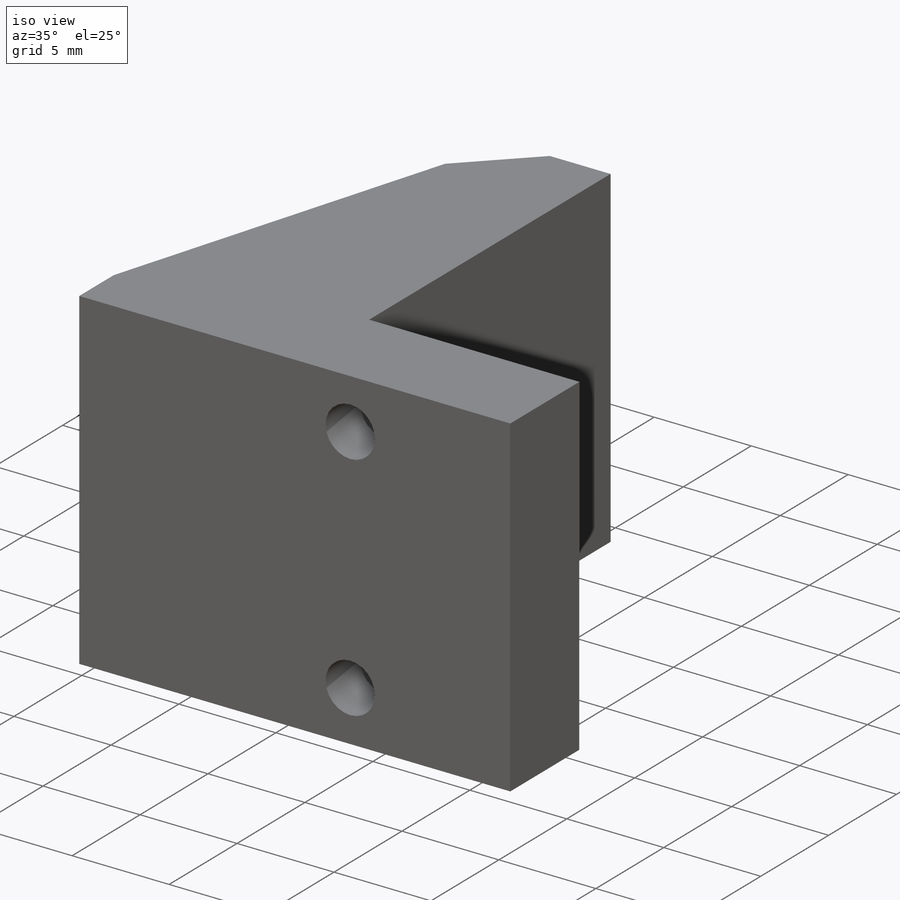
[diagram: iso view]
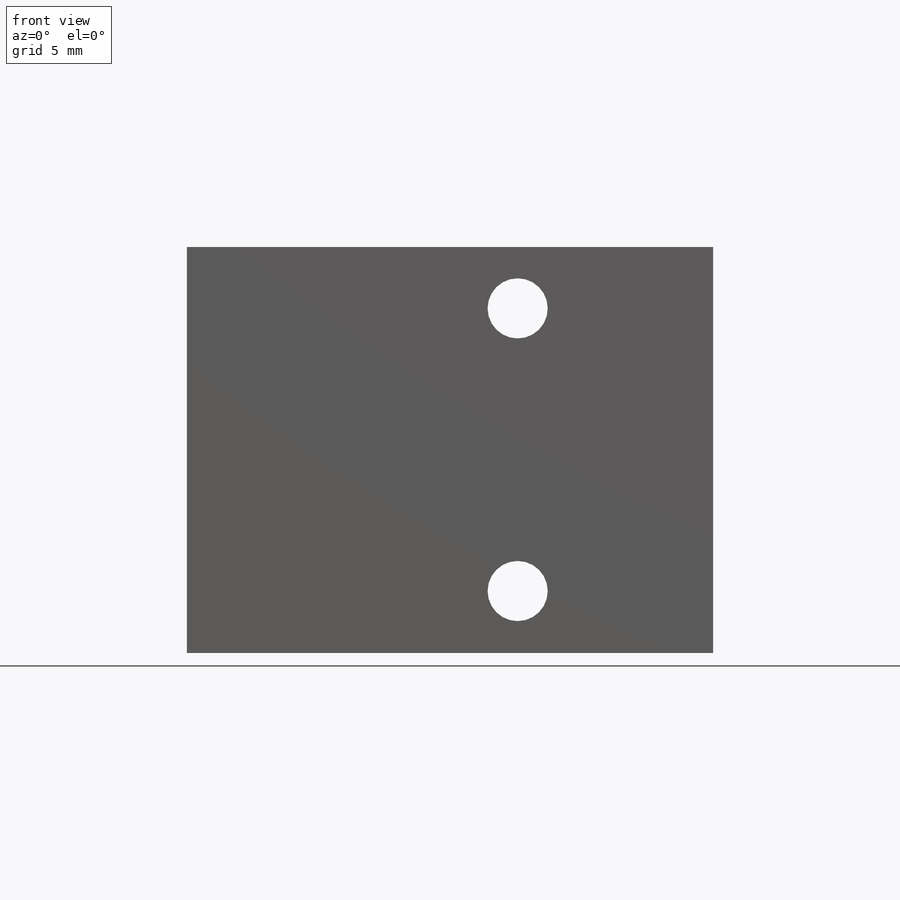
[diagram: front view]
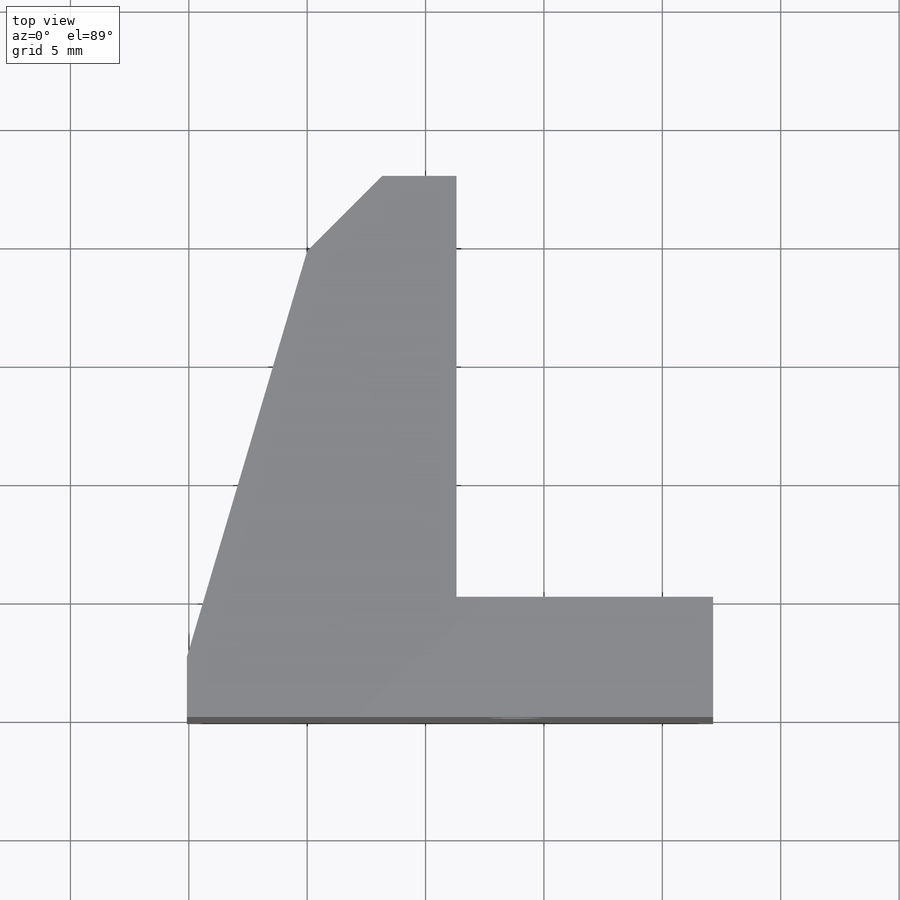
[diagram: top view]
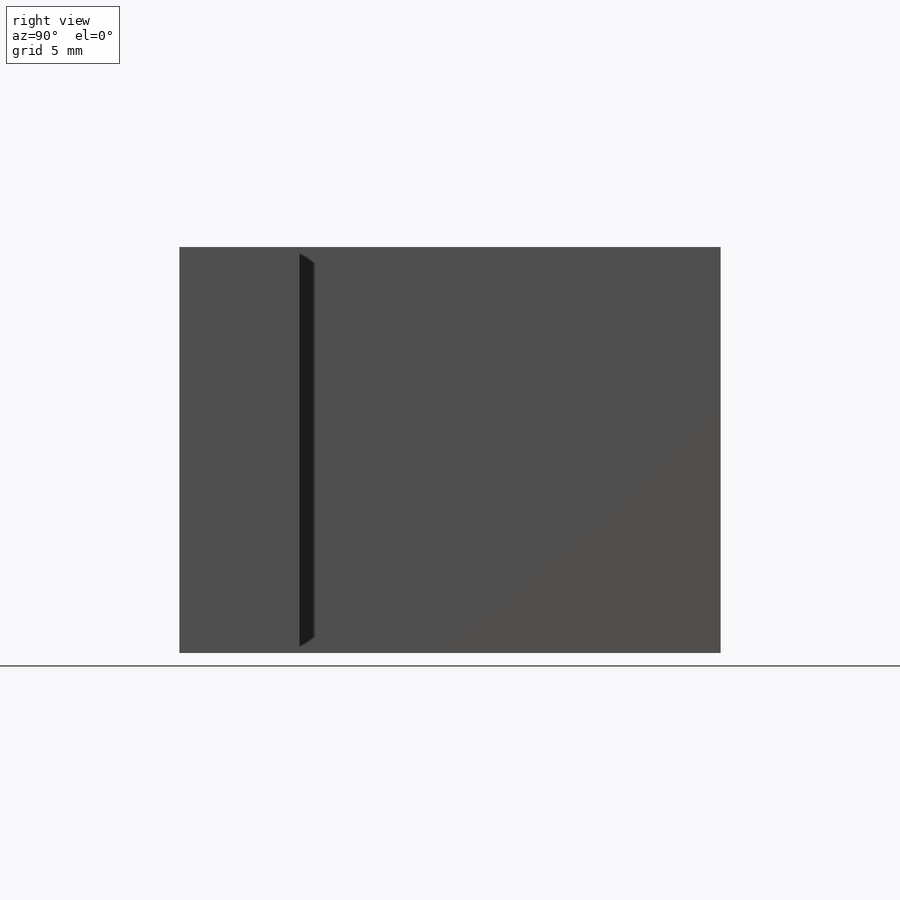
[diagram: right view]
SOLIDWORKS PART (.sldprt)
format: sldprt  version: not decoded by parser v0  size: 204,800 bytes
history: native  units: mm
features: sketch x7, extrude x5, cut_extrude x2, material x1, chamfer x1 (+13 scaffold rows collapsed)
feature tree (29):
  scaffold x13  (default folders/planes/origin — collapsed)
  material  "Material <not specified>"
  sketch  "Sketch1"  dims[D1=17.145mm D2=17.145mm]
  extrude  "Boss-Extrude1"  Depth=5.08mm
  sketch  "Sketch2"  dims[c1.D1=~2.151759mm c1.D2=2.54mm c1.D3=2.54mm c1.D4=2.54mm c1.D5=2.54mm c2.D1=11.938mm c2.D4=2.6162mm c2.D5=2.5908mm c2.D6=8.89mm]
  cut_extrude  "Cut-Extrude1"  [1 undecoded]
  sketch  "Sketch3"  dims[D1=5.08mm .2=5.08mm]
  cut_extrude  "Cut-Extrude4"  Depth=2.54mm
  sketch  "Sketch4"
  extrude  "Boss-Extrude2"  Depth=17.78mm
  sketch  "Sketch5"  dims[D1=2.54mm]
  extrude  "Boss-Extrude3"  Depth=5.08mm
  chamfer  "Chamfer1"  Distance=3.175mm Angle=45deg
  sketch  "Sketch7"
  extrude  "Boss-Extrude4"  Depth=2.54mm
  sketch  "Sketch8"  dims[D1=0.0mm]
  extrude  "Boss-Extrude5"  Depth=2.54mm
decode coverage: 12 of 15 modeling features carry decoded parameters
note: ~ marks probable driven/reference dimensions
note: 1 parameter value undecoded
note: suppression state not decoded; provenance and decode notes live in map.json
